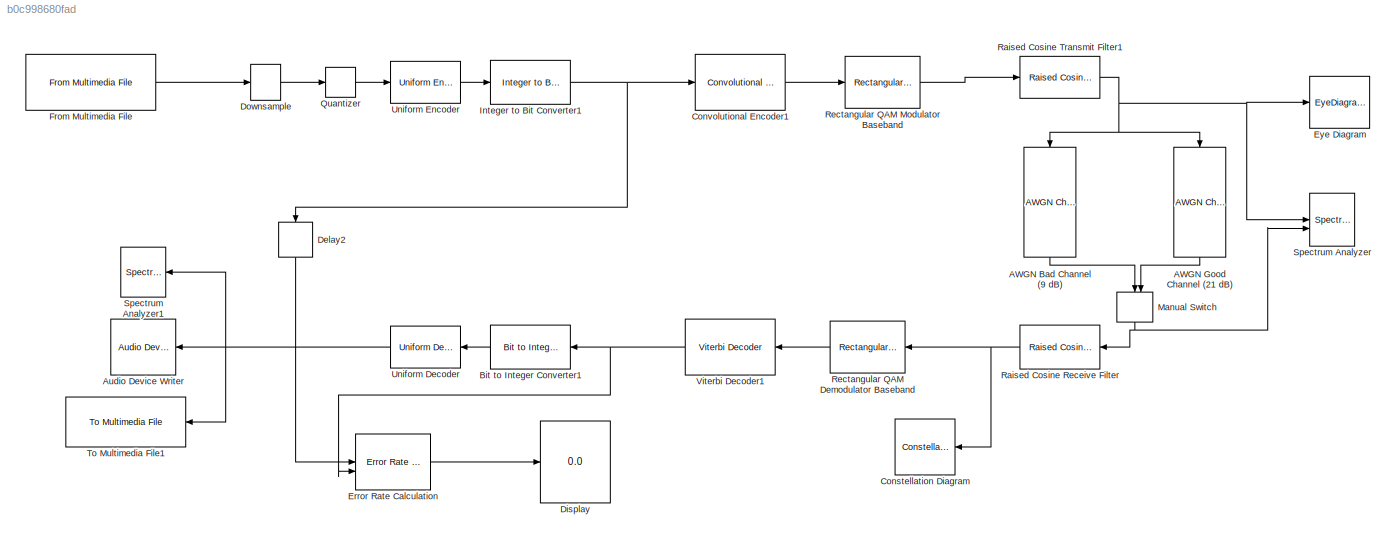
MODEL slx_b0c998680fad
KIND model
CONFIG AbsTol = auto
CONFIG EnableMultiTasking = off
CONFIG FixedStep = auto
CONFIG MaxStep = auto
CONFIG MinStep = auto
CONFIG RelTol = 1e-3
CONFIG SampleTimeConstraint = Unconstrained
CONFIG SolverName = VariableStepAuto
CONFIG StartTime = 0.0
CONFIG StopTime = 60
BLOCK [Reference] AWGN Bad Channel (9 dB)  REF=commchan3/AWGN
Channel
  NameLocation = left
  SourceBlock = commchan3/AWGN\nChannel
  SourceType = AWGN Channel
BLOCK [Reference] AWGN Good Channel (21 dB)  REF=commchan3/AWGN
Channel
  NameLocation = left
  SourceBlock = commchan3/AWGN\nChannel
  SourceType = AWGN Channel
BLOCK [Reference] Audio Device Writer  REF=dspsnks4/Audio Device
Writer
  LibrarySourceBlock = audiosinks/Audio Device\nWriter
  NameLocation = top
  SourceBlock = dspsnks4/Audio Device\nWriter
  SourceType = Audio Device Writer
BLOCK [Reference] Bit to Integer Converter1  REF=simulink/Logic and Bit
Operations/Bit to Integer
Converter
  NameLocation = top
  SourceBlock = simulink/Logic and Bit\nOperations/Bit to Integer\nConverter
  SourceType = Bit to Integer Converter
BLOCK [ConstellationDiagram] Constellation Diagram
  GraphicalSettings = {"Style":{"BackgroundColor":[0.12941176470588237,0.12941176470588237,0.12941176470588237],"AxesColor":[0.070588235294117646,0.070588235294117646,0.070588235294117646],"LabelsColor":[0.85098039215686272,0.85098039215686272,0.85098039215686272],"LineStyle":["NONE","NONE"],"LineColor":[[1,1,0.066666666666666666],[1,0,0]],"LineWidth":[1,1],"Marker":[".","+"],"IsRefLine":[false,true],"FontSize":"small"...<+250ch>
  ReferenceConstellation = 16-QAM
  ScopeFrameLocation = window
  Visible = on
  WasSavedAsWebScope = on
  WindowPosition = [505.000000,151.000000,736.000000,600.000000,]
BLOCK [Reference] Convolutional Encoder1  REF=commcnvcod2/Convolutional
Encoder
  SourceBlock = commcnvcod2/Convolutional\nEncoder
  SourceType = Convolutional Encoder
BLOCK [Delay] Delay2
  DelayLength = 4
  InputPortMap = u0
  NameLocation = left
BLOCK [Display] Display
  Decimation = 1
BLOCK [DownSample] Downsample
  InputProcessing = Elements as channels (sample based)
  RateOptions = Allow multirate processing
BLOCK [Reference] Error Rate Calculation  REF=commsink2/Error Rate
Calculation
  LibrarySourceBlock = commhdlsink/Error Rate\nCalculation
  SourceBlock = commsink2/Error Rate\nCalculation
  SourceType = Error Rate Calculation
BLOCK [EyeDiagramBlock] Eye Diagram
  ScopeFrameLocation = window
  Visible = on
  WasSavedAsWebScope = on
  WindowPosition = [368.000000,182.000000,800.000000,500.000000,]
BLOCK [Reference] From Multimedia File  REF=dspvision/From Multimedia File
  LibrarySourceBlock = audiosources/From Multimedia File
  SourceBlock = dspvision/From Multimedia File
  SourceType = From Multimedia File
BLOCK [Reference] Integer to Bit Converter1  REF=simulink/Logic and Bit
Operations/Integer to Bit
Converter
  SourceBlock = simulink/Logic and Bit\nOperations/Integer to Bit\nConverter
  SourceType = Integer to Bit Converter
BLOCK [ManualSwitch] Manual Switch
  NameLocation = left
BLOCK [Quantizer] Quantizer
  QuantizationInterval = 0.0625
BLOCK [Reference] Raised Cosine Receive Filter  REF=commfilt2/Raised Cosine
Receive Filter
  LibrarySourceBlock = commhdlfilt/Raised Cosine\nReceive Filter
  SourceBlock = commfilt2/Raised Cosine\nReceive Filter
  SourceType = Raised Cosine Receive Filter
  UserDataPersistent = on
BLOCK [Reference] Raised Cosine Transmit Filter1  REF=commfilt2/Raised Cosine
Transmit Filter
  SourceBlock = commfilt2/Raised Cosine\nTransmit Filter
  SourceType = Raised Cosine Transmit Filter
BLOCK [Reference] Rectangular QAM Demodulator Baseband  REF=commdigbbndam3/Rectangular QAM
Demodulator
Baseband
  LibrarySourceBlock = commhdldigbbndam/Rectangular QAM\nDemodulator\nBaseband
  NameLocation = top
  SourceBlock = commdigbbndam3/Rectangular QAM\nDemodulator\nBaseband
  SourceType = Rectangular QAM Demodulator Baseband
BLOCK [Reference] Rectangular QAM Modulator Baseband  REF=commdigbbndam3/Rectangular QAM
Modulator
Baseband
  LibrarySourceBlock = commhdldigbbndam/Rectangular QAM\nModulator\nBaseband
  SourceBlock = commdigbbndam3/Rectangular QAM\nModulator\nBaseband
  SourceType = Rectangular QAM Modulator Baseband
BLOCK [SpectrumAnalyzer] Spectrum Analyzer
  DefaultConfigurationName = spbscopes.SpectrumAnalyzerBlockCfg
  FrequencyInputRBWFromPort = 0
  FrequencyInputRBWPort = 0
  FrequencySpan = Span and center frequency
  FrequencyVectorFromPort = 0
  FrequencyVectorPort = 0
  GraphicalSettings = {"GraphicalSettings":{"Style":{"BackgroundColor":[0.1568627450980392,0.1568627450980392,0.1568627450980392],"AxesColor":[0,0,0],"LabelsColor":[0.6862745098039216,0.6862745098039216,0.6862745098039216],"PreserveColors":false,"Visible":[true,true],"LineStyle":["-","-"],"LineColor":[[1,1,0.06666666666666667],[0.07450980392156863,0.6235294117647059,1]],"LineWidth":[1.5,1.5],"Marker":["none","none"],"F...<+920ch>
  IsFrequencyInputMode = 0
  NumInputPorts = 2
  ScopeFrameLocation = window
  ScopeSpecificationString = spbscopes.SpectrumAnalyzerBlockCfg('CurrentConfiguration', extmgr.ConfigurationSet(extmgr.Configuration('Core','General UI',true),extmgr.Configuration('Core','Source UI',true),extmgr.Configuration('Sources','WiredSimulink',true),extmgr.Configuration('Visuals','Spectrum',true,'AxesProperties',struct('Color',{[0 0 0],[0 0 0]},'XColor',{[0.686274509803922 0.686274509803922 0.686274509803922],[0.68627...<+1392ch>
  ShowLegend = on
  Span = 12000
  StartFrequency = -420000
  StopFrequency = 420000
  Visible = on
  WasSavedAsWebScope = on
  WindowPosition = [1.000000,49.000000,1539.000000,844.000000,]
  YLimits = [-47.71617066,32.07283337]
BLOCK [SpectrumAnalyzer] Spectrum Analyzer1
  GraphicalSettings = {"GraphicalSettings":{"Style":{"BackgroundColor":[0.12941176470588237,0.12941176470588237,0.12941176470588237],"AxesColor":[0.07058823529411765,0.07058823529411765,0.07058823529411765],"LabelsColor":[0.8509803921568627,0.8509803921568627,0.8509803921568627],"PreserveColors":false,"Visible":[true],"LineStyle":["-"],"LineColor":[[1,1,0.06666666666666667]],"LineWidth":[1.5],"Marker":["none"],"FontSiz...<+929ch>
  NameLocation = top
  ScopeFrameLocation = window
  SelectedToolstripTab = spectrumAnalyzerToolstrip.spectralMaskTab
  Visible = on
  WasSavedAsWebScope = on
  WindowPosition = [301.000000,253.000000,800.000000,500.000000,]
  YLimits = [-62.98536533,26.96332919]
BLOCK [Reference] To Multimedia File1  REF=dspvision/To Multimedia File
  LibrarySourceBlock = dspsnks4/To Multimedia File
  NameLocation = top
  SourceBlock = dspvision/To Multimedia File
  SourceType = To Multimedia File
BLOCK [Reference] Uniform Decoder  REF=dspquant2/Uniform
Decoder
  NameLocation = top
  SourceBlock = dspquant2/Uniform\nDecoder
  SourceType = Uniform Decoder
BLOCK [Reference] Uniform Encoder  REF=dspquant2/Uniform
Encoder
  SourceBlock = dspquant2/Uniform\nEncoder
  SourceType = Uniform Encoder
BLOCK [Reference] Viterbi Decoder1  REF=commcnvcod2/Viterbi Decoder
  SourceBlock = commcnvcod2/Viterbi Decoder
  SourceType = Viterbi Decoder
LINE AWGN Bad Channel (9 dB):1 -> Manual Switch:1
LINE AWGN Good Channel (21 dB):1 -> Manual Switch:2
LINE Bit to Integer Converter1:1 -> Uniform Decoder:1
LINE Convolutional Encoder1:1 -> Rectangular QAM Modulator Baseband:1
LINE Delay2:1 -> Error Rate Calculation:1
LINE Downsample:1 -> Quantizer:1
LINE Error Rate Calculation:1 -> Display:1
LINE From Multimedia File:1 -> Downsample:1
NET Integer to Bit Converter1:1 -> Convolutional Encoder1:1, Delay2:1
NET Manual Switch:1 -> Raised Cosine Receive Filter:1, Spectrum Analyzer:2
LINE Quantizer:1 -> Uniform Encoder:1
NET Raised Cosine Receive Filter:1 -> Constellation Diagram:1, Rectangular QAM Demodulator Baseband:1
NET Raised Cosine Transmit Filter1:1 -> AWGN Bad Channel (9 dB):1, AWGN Good Channel (21 dB):1, Eye Diagram:1, Spectrum Analyzer:1
LINE Rectangular QAM Demodulator Baseband:1 -> Viterbi Decoder1:1
LINE Rectangular QAM Modulator Baseband:1 -> Raised Cosine Transmit Filter1:1
NET Uniform Decoder:1 -> Audio Device Writer:1, Spectrum Analyzer1:1, To Multimedia File1:1
LINE Uniform Encoder:1 -> Integer to Bit Converter1:1
NET Viterbi Decoder1:1 -> Bit to Integer Converter1:1, Error Rate Calculation:2
note: NET lines group one-source signal fan-out (src -> all destinations, sorted); 1:1 wires keep LINE
